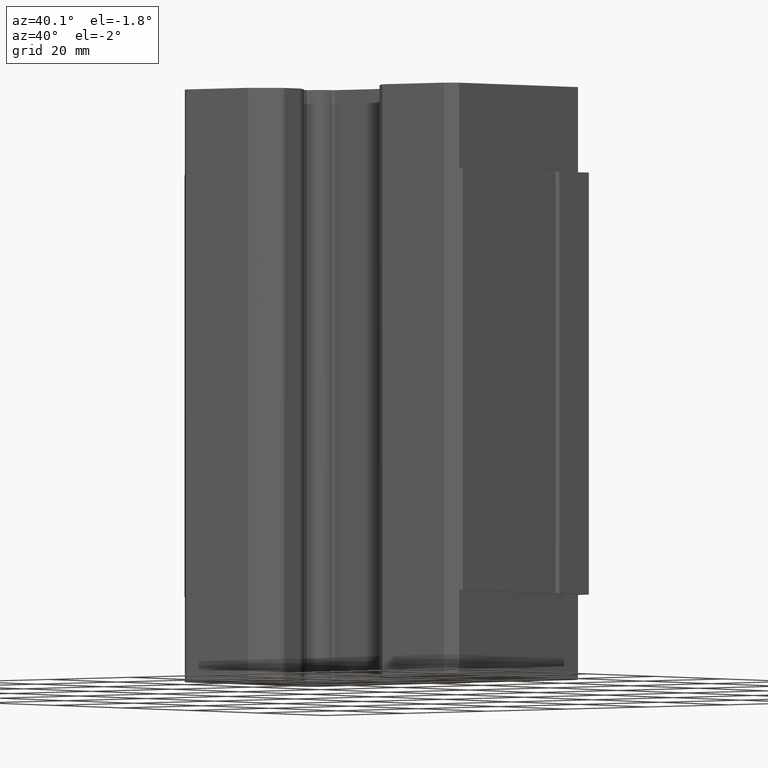
[diagram: clean part render]
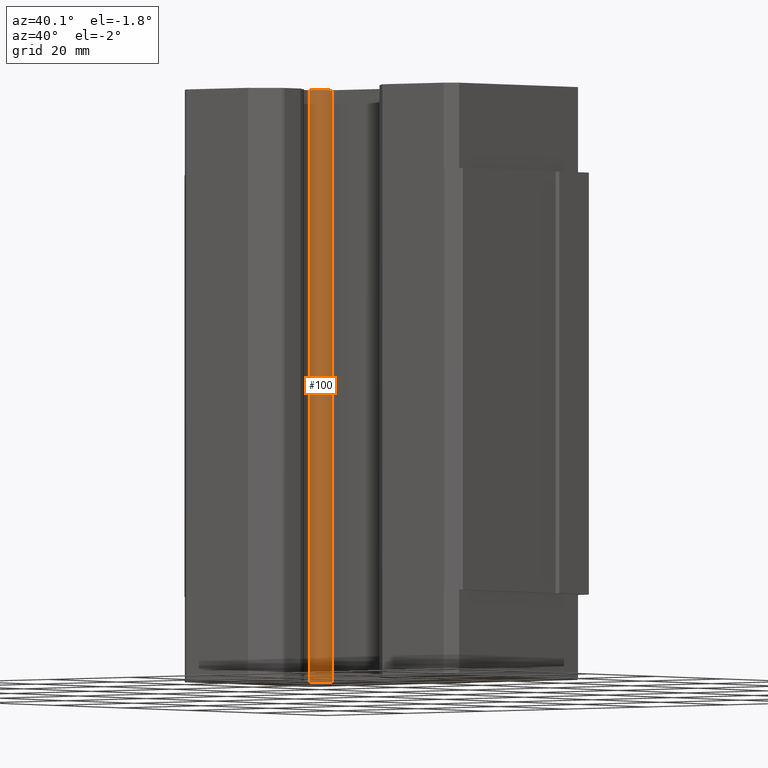
[diagram: same view with one face highlighted and labeled with its STEP entity id]
A machine part, auxiliary view. The second image highlights one B-rep face of the part: STEP entity #100.
In plain terms, the highlighted cylindrical surface (edge-blend (fillet) strip) has radius 3.25 mm, axis along (0, 0, 1).
Its self-contained STEP definition (entity closure, byte-faithful):
#87 = ORIENTED_EDGE ( 'NONE', *, *, #420, .T. ) ;
#88 = EDGE_CURVE ( 'NONE', #380, #93, #2767, .T. ) ;
#89 = ORIENTED_EDGE ( 'NONE', *, *, #88, .F. ) ;
#90 = EDGE_CURVE ( 'NONE', #425, #92, #2762, .T. ) ;
#91 = EDGE_CURVE ( 'NONE', #93, #92, #2756, .T. ) ;
#92 = VERTEX_POINT ( 'NONE', #2752 ) ;
#93 = VERTEX_POINT ( 'NONE', #2751 ) ;
#94 = ORIENTED_EDGE ( 'NONE', *, *, #90, .T. ) ;
#95 = ORIENTED_EDGE ( 'NONE', *, *, #91, .F. ) ;
#99 = EDGE_LOOP ( 'NONE', ( #94, #95, #89, #87 ) ) ;
#100 = ADVANCED_FACE ( 'NONE', ( #2746 ), #2745, .T. ) ;
#380 = VERTEX_POINT ( 'NONE', #3365 ) ;
#420 = EDGE_CURVE ( 'NONE', #380, #425, #3455, .T. ) ;
#425 = VERTEX_POINT ( 'NONE', #3511 ) ;
#2739 = DIRECTION ( 'NONE',  ( 1.000000000000000000, 0.0000000000000000000, 0.0000000000000000000 ) ) ;
#2740 = DIRECTION ( 'NONE',  ( 0.0000000000000000000, 0.0000000000000000000, 1.000000000000000000 ) ) ;
#2743 = CARTESIAN_POINT ( 'NONE',  ( -16.86757359313000000, -0.1304264068712000000, -40.00000000000000000 ) ) ;
#2744 = AXIS2_PLACEMENT_3D ( 'NONE', #2743, #2740, #2739 ) ;
#2745 = CYLINDRICAL_SURFACE ( 'NONE', #2744, 3.249999999999999600 ) ;
#2746 = FACE_OUTER_BOUND ( 'NONE', #99, .T. ) ;
#2751 = CARTESIAN_POINT ( 'NONE',  ( -13.62681920692205400, -0.3753978506867546300, 56.20000000000001000 ) ) ;
#2752 = CARTESIAN_POINT ( 'NONE',  ( -13.62681920692216600, -0.3753978506882150700, -56.20000000000001000 ) ) ;
#2753 = DIRECTION ( 'NONE',  ( 0.0000000000000000000, 0.0000000000000000000, -1.000000000000000000 ) ) ;
#2754 = VECTOR ( 'NONE', #2753, 1000.000000000000000 ) ;
#2755 = CARTESIAN_POINT ( 'NONE',  ( -13.62681920692019900, -0.3753978506848997300, -40.00000000000000000 ) ) ;
#2756 = LINE ( 'NONE', #2755, #2754 ) ;
#2757 = DIRECTION ( 'NONE',  ( 1.000000000000000000, 0.0000000000000000000, 0.0000000000000000000 ) ) ;
#2758 = DIRECTION ( 'NONE',  ( 0.0000000000000000000, 0.0000000000000000000, 1.000000000000000000 ) ) ;
#2759 = CARTESIAN_POINT ( 'NONE',  ( -16.86757359313000000, -0.1304264068712000000, -56.20000000000001000 ) ) ;
#2761 = AXIS2_PLACEMENT_3D ( 'NONE', #2759, #2758, #2757 ) ;
#2762 = CIRCLE ( 'NONE', #2761, 3.249999999999999600 ) ;
#2763 = DIRECTION ( 'NONE',  ( 1.000000000000000000, 0.0000000000000000000, 0.0000000000000000000 ) ) ;
#2764 = DIRECTION ( 'NONE',  ( 0.0000000000000000000, 0.0000000000000000000, 1.000000000000000000 ) ) ;
#2765 = CARTESIAN_POINT ( 'NONE',  ( -16.86757359313000000, -0.1304264068712000000, 56.20000000000001000 ) ) ;
#2766 = AXIS2_PLACEMENT_3D ( 'NONE', #2765, #2764, #2763 ) ;
#2767 = CIRCLE ( 'NONE', #2766, 3.249999999999999600 ) ;
#3365 = CARTESIAN_POINT ( 'NONE',  ( -16.62260214931220000, -3.371180793077261500, 56.20000000000001000 ) ) ;
#3452 = DIRECTION ( 'NONE',  ( 0.0000000000000000000, 0.0000000000000000000, -1.000000000000000000 ) ) ;
#3453 = VECTOR ( 'NONE', #3452, 1000.000000000000000 ) ;
#3454 = CARTESIAN_POINT ( 'NONE',  ( -16.62260214930992000, -3.371180793077088700, -40.00000000000000000 ) ) ;
#3455 = LINE ( 'NONE', #3454, #3453 ) ;
#3511 = CARTESIAN_POINT ( 'NONE',  ( -16.62260214931220000, -3.371180793077261500, -56.20000000000001000 ) ) ;